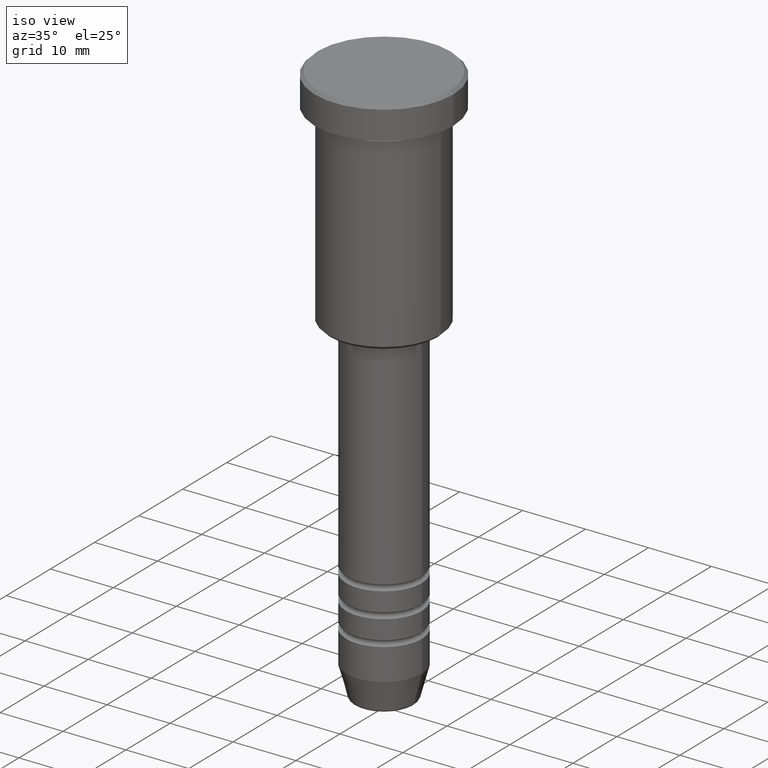
[diagram: clean part render]
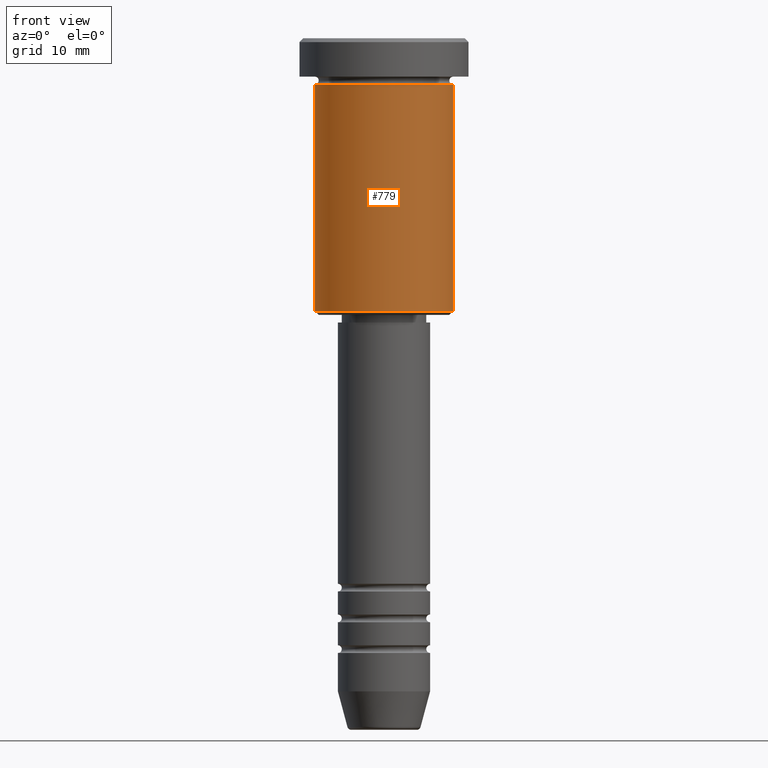
[diagram: tour spotlight — one face highlighted and labeled with its STEP entity id]
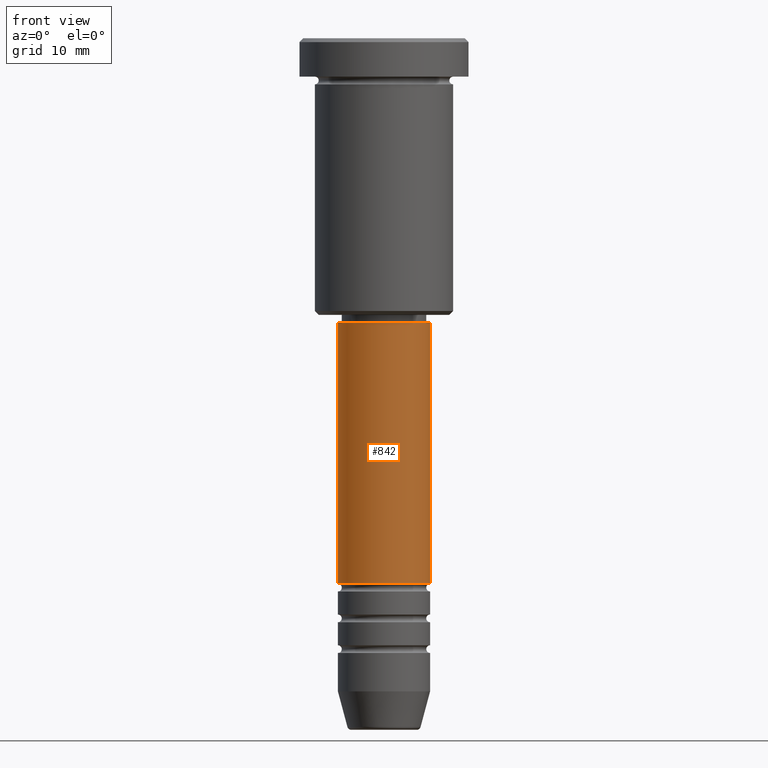
[diagram: tour spotlight — one face highlighted and labeled with its STEP entity id]
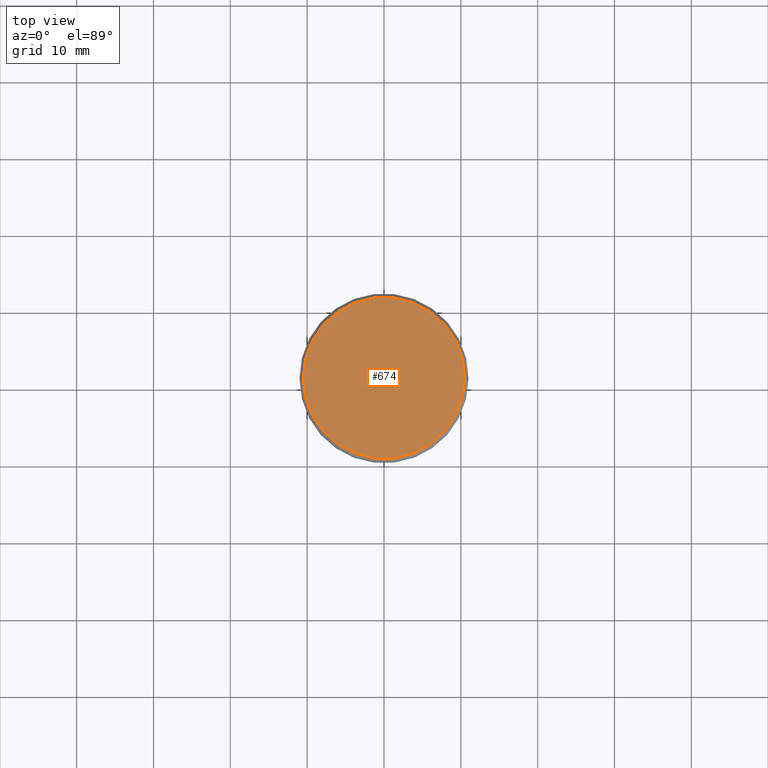
[diagram: tour spotlight — one face highlighted and labeled with its STEP entity id]
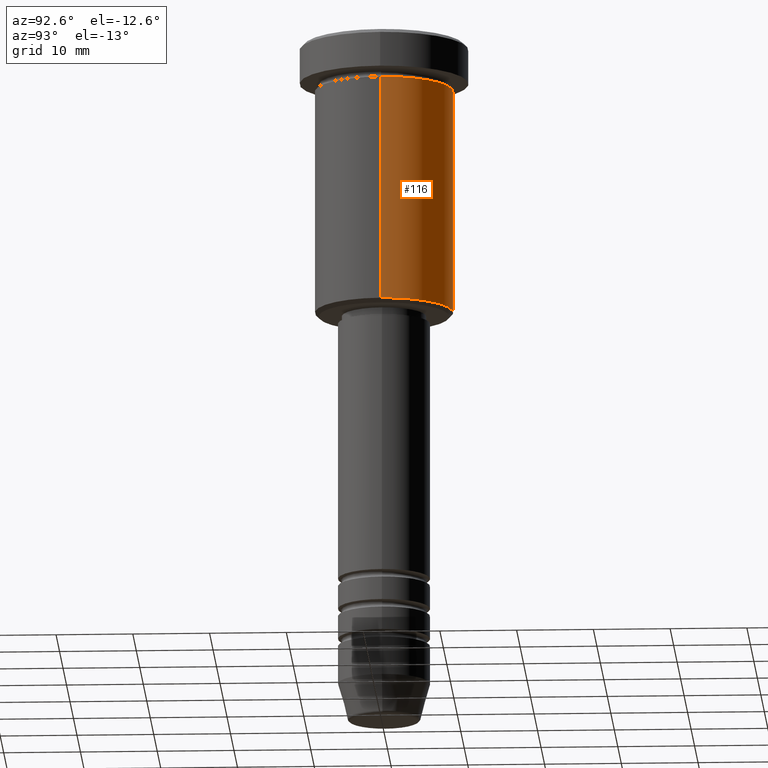
[diagram: tour spotlight — one face highlighted and labeled with its STEP entity id]
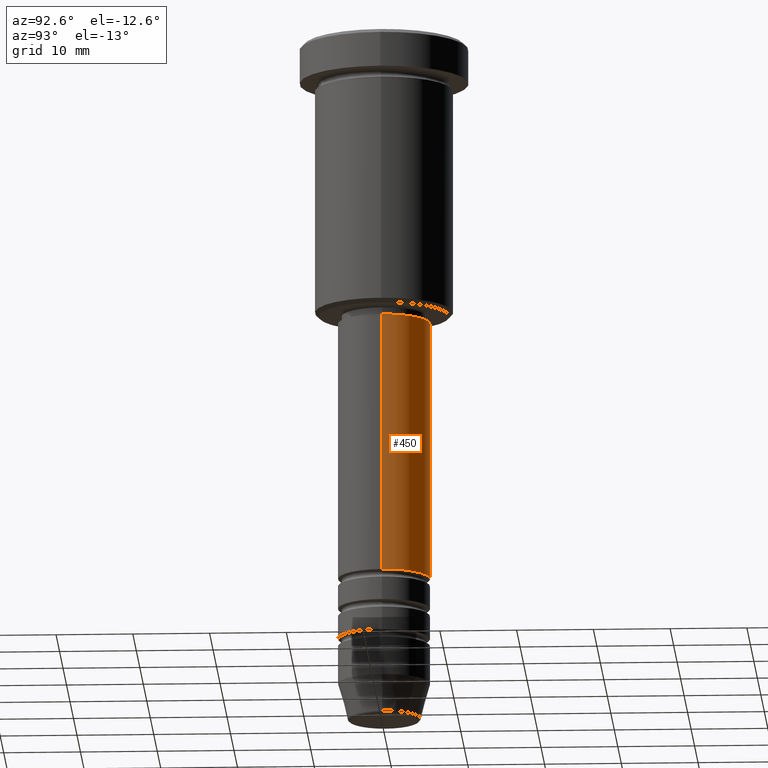
[diagram: tour spotlight — one face highlighted and labeled with its STEP entity id]
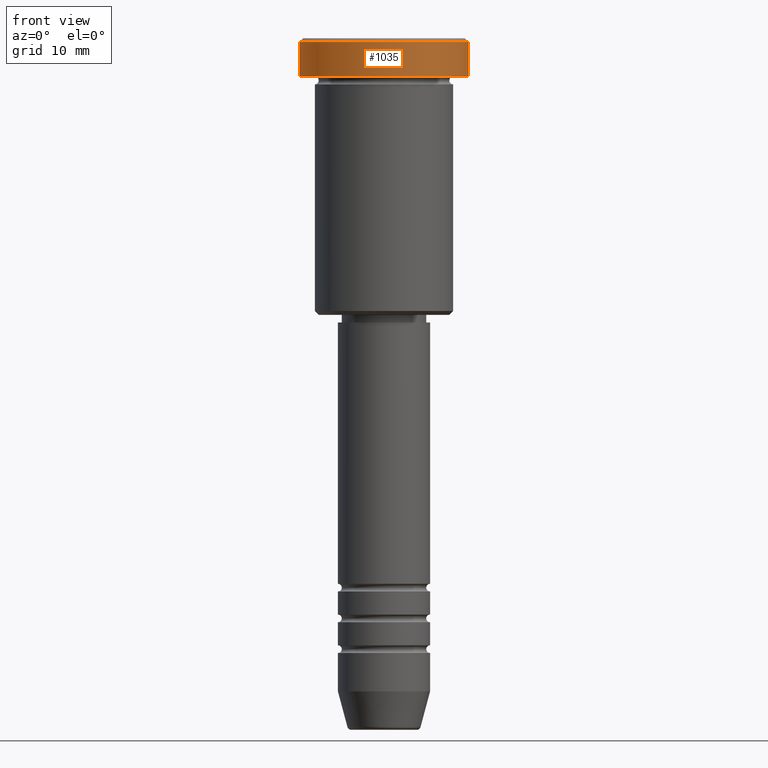
[diagram: tour spotlight — one face highlighted and labeled with its STEP entity id]
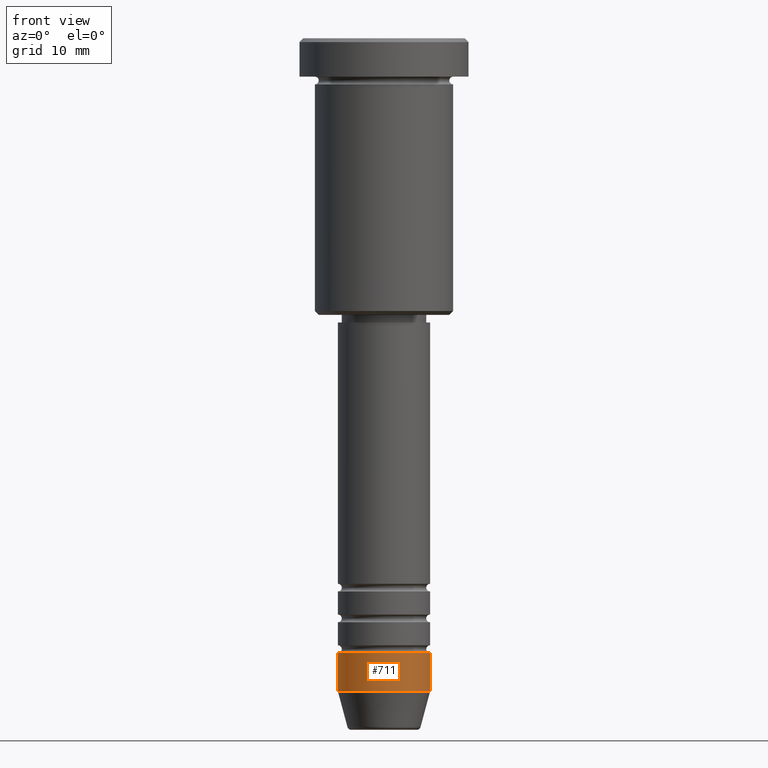
[diagram: tour spotlight — one face highlighted and labeled with its STEP entity id]
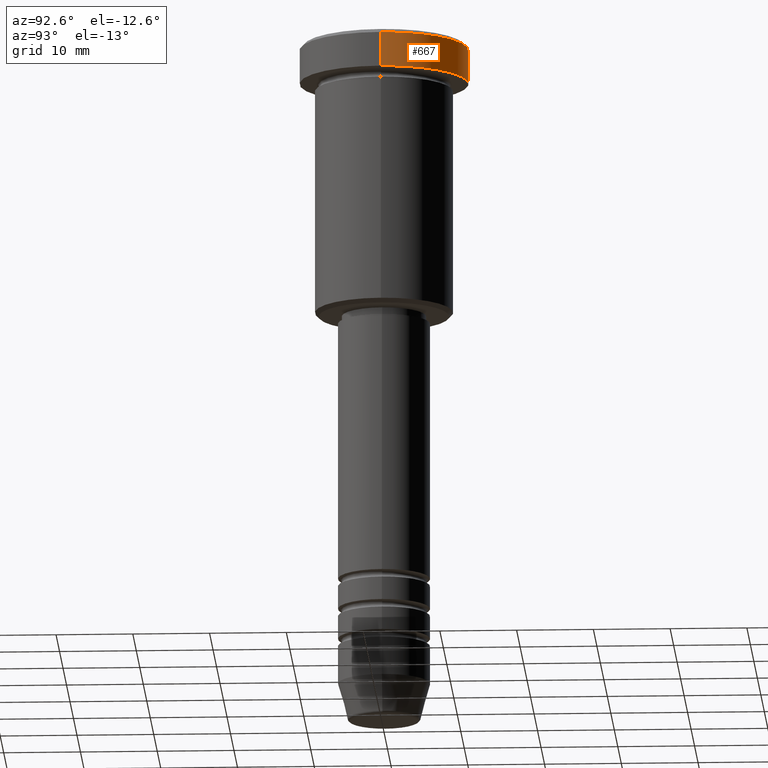
[diagram: tour spotlight — one face highlighted and labeled with its STEP entity id]
A machine part: a face-by-face anatomy tour. The part has 43 B-rep faces; the first image is the clean iso view, then the 8 largest visible faces are spotlighted one at a time (largest first), each with its STEP entity span.

Face 1 — front view, entity #779. In plain terms, the highlighted cylindrical surface (partial cylindrical patch) has radius 9 mm, axis along (-0, -0, 1).
Definition (entity closure, byte-faithful):
#21 = VERTEX_POINT ( 'NONE', #177 ) ;
#133 = CARTESIAN_POINT ( 'NONE',  ( 0.000000000000000000, 0.000000000000000000, -35.50000000000000000 ) ) ;
#134 = DIRECTION ( 'NONE',  ( 1.000000000000000000, 0.000000000000000000, 0.000000000000000000 ) ) ;
#161 = VECTOR ( 'NONE', #552, 1000.000000000000000 ) ;
#162 = AXIS2_PLACEMENT_3D ( 'NONE', #680, #1052, #134 ) ;
#177 = CARTESIAN_POINT ( 'NONE',  ( 9.000000000000000000, 0.000000000000000000, -6.000000000000000000 ) ) ;
#186 = CARTESIAN_POINT ( 'NONE',  ( -9.000000000000000000, 1.102182119232617714E-15, 0.000000000000000000 ) ) ;
#207 = ORIENTED_EDGE ( 'NONE', *, *, #330, .T. ) ;
#213 = DIRECTION ( 'NONE',  ( -0.000000000000000000, -0.000000000000000000, 1.000000000000000000 ) ) ;
#319 = CIRCLE ( 'NONE', #933, 9.000000000000000000 ) ;
#323 = DIRECTION ( 'NONE',  ( -0.000000000000000000, -0.000000000000000000, 1.000000000000000000 ) ) ;
#330 = EDGE_CURVE ( 'NONE', #487, #1087, #563, .T. ) ;
#387 = ORIENTED_EDGE ( 'NONE', *, *, #570, .T. ) ;
#389 = CYLINDRICAL_SURFACE ( 'NONE', #162, 9.000000000000000000 ) ;
#477 = FACE_OUTER_BOUND ( 'NONE', #897, .T. ) ;
#487 = VERTEX_POINT ( 'NONE', #981 ) ;
#494 = DIRECTION ( 'NONE',  ( -1.000000000000000000, 0.000000000000000000, 0.000000000000000000 ) ) ;
#552 = DIRECTION ( 'NONE',  ( -0.000000000000000000, -0.000000000000000000, 1.000000000000000000 ) ) ;
#563 = CIRCLE ( 'NONE', #1159, 9.000000000000000000 ) ;
#570 = EDGE_CURVE ( 'NONE', #1087, #21, #1097, .T. ) ;
#639 = CARTESIAN_POINT ( 'NONE',  ( 9.000000000000000000, 0.000000000000000000, 0.000000000000000000 ) ) ;
#643 = EDGE_CURVE ( 'NONE', #487, #668, #728, .T. ) ;
#668 = VERTEX_POINT ( 'NONE', #1140 ) ;
#680 = CARTESIAN_POINT ( 'NONE',  ( 0.000000000000000000, 0.000000000000000000, 0.000000000000000000 ) ) ;
#728 = LINE ( 'NONE', #186, #161 ) ;
#736 = DIRECTION ( 'NONE',  ( -0.000000000000000000, -0.000000000000000000, 1.000000000000000000 ) ) ;
#779 = ADVANCED_FACE ( 'NONE', ( #477 ), #389, .T. ) ;
#804 = EDGE_CURVE ( 'NONE', #668, #21, #319, .T. ) ;
#826 = ORIENTED_EDGE ( 'NONE', *, *, #643, .F. ) ;
#845 = DIRECTION ( 'NONE',  ( 1.000000000000000000, 0.000000000000000000, 0.000000000000000000 ) ) ;
#849 = CARTESIAN_POINT ( 'NONE',  ( 0.000000000000000000, 0.000000000000000000, -6.000000000000000000 ) ) ;
#897 = EDGE_LOOP ( 'NONE', ( #826, #207, #387, #953 ) ) ;
#933 = AXIS2_PLACEMENT_3D ( 'NONE', #849, #213, #845 ) ;
#951 = VECTOR ( 'NONE', #736, 1000.000000000000000 ) ;
#953 = ORIENTED_EDGE ( 'NONE', *, *, #804, .F. ) ;
#981 = CARTESIAN_POINT ( 'NONE',  ( -9.000000000000000000, 1.102182119232617714E-15, -35.50000000000000000 ) ) ;
#1052 = DIRECTION ( 'NONE',  ( -0.000000000000000000, -0.000000000000000000, 1.000000000000000000 ) ) ;
#1087 = VERTEX_POINT ( 'NONE', #1150 ) ;
#1097 = LINE ( 'NONE', #639, #951 ) ;
#1140 = CARTESIAN_POINT ( 'NONE',  ( -9.000000000000000000, 1.102182119232617714E-15, -6.000000000000000000 ) ) ;
#1150 = CARTESIAN_POINT ( 'NONE',  ( 9.000000000000000000, 0.000000000000000000, -35.50000000000000000 ) ) ;
#1159 = AXIS2_PLACEMENT_3D ( 'NONE', #133, #323, #494 ) ;

Face 2 — front view, entity #842. In plain terms, the highlighted cylindrical surface (partial cylindrical patch) has radius 6 mm, axis along (-0, -0, 1).
Definition (entity closure, byte-faithful):
#1 = ORIENTED_EDGE ( 'NONE', *, *, #464, .T. ) ;
#7 = DIRECTION ( 'NONE',  ( 1.000000000000000000, 0.000000000000000000, 0.000000000000000000 ) ) ;
#9 = VERTEX_POINT ( 'NONE', #1100 ) ;
#46 = LINE ( 'NONE', #776, #102 ) ;
#92 = LINE ( 'NONE', #388, #405 ) ;
#102 = VECTOR ( 'NONE', #584, 1000.000000000000000 ) ;
#139 = DIRECTION ( 'NONE',  ( 1.000000000000000000, 0.000000000000000000, 0.000000000000000000 ) ) ;
#144 = CARTESIAN_POINT ( 'NONE',  ( 6.000000000000000000, 0.000000000000000000, -37.00000000000000711 ) ) ;
#150 = CARTESIAN_POINT ( 'NONE',  ( 6.000000000000000000, 0.000000000000000000, -70.99999999999998579 ) ) ;
#235 = FACE_OUTER_BOUND ( 'NONE', #540, .T. ) ;
#254 = EDGE_CURVE ( 'NONE', #1057, #1058, #92, .T. ) ;
#299 = ORIENTED_EDGE ( 'NONE', *, *, #254, .T. ) ;
#337 = AXIS2_PLACEMENT_3D ( 'NONE', #385, #561, #7 ) ;
#380 = EDGE_CURVE ( 'NONE', #843, #9, #46, .T. ) ;
#385 = CARTESIAN_POINT ( 'NONE',  ( 0.000000000000000000, 0.000000000000000000, -37.00000000000000711 ) ) ;
#388 = CARTESIAN_POINT ( 'NONE',  ( 6.000000000000000000, 0.000000000000000000, 0.000000000000000000 ) ) ;
#405 = VECTOR ( 'NONE', #1027, 1000.000000000000000 ) ;
#464 = EDGE_CURVE ( 'NONE', #843, #1057, #715, .T. ) ;
#509 = CYLINDRICAL_SURFACE ( 'NONE', #564, 6.000000000000000000 ) ;
#533 = EDGE_CURVE ( 'NONE', #9, #1058, #812, .T. ) ;
#540 = EDGE_LOOP ( 'NONE', ( #874, #1, #299, #857 ) ) ;
#561 = DIRECTION ( 'NONE',  ( -0.000000000000000000, -0.000000000000000000, 1.000000000000000000 ) ) ;
#564 = AXIS2_PLACEMENT_3D ( 'NONE', #878, #594, #139 ) ;
#584 = DIRECTION ( 'NONE',  ( -0.000000000000000000, -0.000000000000000000, 1.000000000000000000 ) ) ;
#594 = DIRECTION ( 'NONE',  ( -0.000000000000000000, -0.000000000000000000, 1.000000000000000000 ) ) ;
#601 = CARTESIAN_POINT ( 'NONE',  ( -6.000000000000000000, 7.347880794884119736E-16, -70.99999999999998579 ) ) ;
#715 = CIRCLE ( 'NONE', #867, 6.000000000000000000 ) ;
#776 = CARTESIAN_POINT ( 'NONE',  ( -6.000000000000000000, 7.347880794884119736E-16, 0.000000000000000000 ) ) ;
#801 = DIRECTION ( 'NONE',  ( -0.000000000000000000, -0.000000000000000000, 1.000000000000000000 ) ) ;
#812 = CIRCLE ( 'NONE', #337, 6.000000000000000000 ) ;
#842 = ADVANCED_FACE ( 'NONE', ( #235 ), #509, .T. ) ;
#843 = VERTEX_POINT ( 'NONE', #601 ) ;
#857 = ORIENTED_EDGE ( 'NONE', *, *, #533, .F. ) ;
#867 = AXIS2_PLACEMENT_3D ( 'NONE', #1075, #801, #891 ) ;
#874 = ORIENTED_EDGE ( 'NONE', *, *, #380, .F. ) ;
#878 = CARTESIAN_POINT ( 'NONE',  ( 0.000000000000000000, 0.000000000000000000, 0.000000000000000000 ) ) ;
#891 = DIRECTION ( 'NONE',  ( 1.000000000000000000, 0.000000000000000000, 0.000000000000000000 ) ) ;
#1027 = DIRECTION ( 'NONE',  ( -0.000000000000000000, -0.000000000000000000, 1.000000000000000000 ) ) ;
#1057 = VERTEX_POINT ( 'NONE', #150 ) ;
#1058 = VERTEX_POINT ( 'NONE', #144 ) ;
#1075 = CARTESIAN_POINT ( 'NONE',  ( 0.000000000000000000, 0.000000000000000000, -70.99999999999998579 ) ) ;
#1100 = CARTESIAN_POINT ( 'NONE',  ( -6.000000000000000000, 7.347880794884119736E-16, -37.00000000000000711 ) ) ;

Face 3 — top view, entity #674. In plain terms, the highlighted planar face has unit normal (0, -0, 1).
Definition (entity closure, byte-faithful):
#20 = CARTESIAN_POINT ( 'NONE',  ( -10.49999999999999467, 0.000000000000000000, 0.000000000000000000 ) ) ;
#167 = EDGE_CURVE ( 'NONE', #816, #528, #950, .T. ) ;
#409 = DIRECTION ( 'NONE',  ( 1.000000000000000000, 0.000000000000000000, 0.000000000000000000 ) ) ;
#420 = DIRECTION ( 'NONE',  ( 1.000000000000000000, 0.000000000000000000, 0.000000000000000000 ) ) ;
#490 = CIRCLE ( 'NONE', #935, 10.49999999999999467 ) ;
#513 = CARTESIAN_POINT ( 'NONE',  ( 0.000000000000000000, 0.000000000000000000, 0.000000000000000000 ) ) ;
#528 = VERTEX_POINT ( 'NONE', #20 ) ;
#568 = DIRECTION ( 'NONE',  ( -0.000000000000000000, -0.000000000000000000, 1.000000000000000000 ) ) ;
#592 = ORIENTED_EDGE ( 'NONE', *, *, #167, .T. ) ;
#656 = CARTESIAN_POINT ( 'NONE',  ( 0.000000000000000000, 0.000000000000000000, 0.000000000000000000 ) ) ;
#665 = CARTESIAN_POINT ( 'NONE',  ( 10.49999999999999467, 1.316495309083404420E-15, 0.000000000000000000 ) ) ;
#674 = ADVANCED_FACE ( 'NONE', ( #856 ), #1125, .T. ) ;
#692 = ORIENTED_EDGE ( 'NONE', *, *, #1144, .T. ) ;
#742 = DIRECTION ( 'NONE',  ( 1.000000000000000000, 0.000000000000000000, 0.000000000000000000 ) ) ;
#816 = VERTEX_POINT ( 'NONE', #665 ) ;
#856 = FACE_OUTER_BOUND ( 'NONE', #960, .T. ) ;
#935 = AXIS2_PLACEMENT_3D ( 'NONE', #513, #964, #420 ) ;
#939 = CARTESIAN_POINT ( 'NONE',  ( 0.000000000000000000, 0.000000000000000000, 0.000000000000000000 ) ) ;
#950 = CIRCLE ( 'NONE', #1064, 10.49999999999999467 ) ;
#960 = EDGE_LOOP ( 'NONE', ( #692, #592 ) ) ;
#962 = DIRECTION ( 'NONE',  ( 0.000000000000000000, -0.000000000000000000, 1.000000000000000000 ) ) ;
#964 = DIRECTION ( 'NONE',  ( -0.000000000000000000, -0.000000000000000000, 1.000000000000000000 ) ) ;
#972 = AXIS2_PLACEMENT_3D ( 'NONE', #939, #962, #409 ) ;
#1064 = AXIS2_PLACEMENT_3D ( 'NONE', #656, #568, #742 ) ;
#1125 = PLANE ( 'NONE',  #972 ) ;
#1144 = EDGE_CURVE ( 'NONE', #528, #816, #490, .T. ) ;

Face 4 — auxiliary view, entity #116. In plain terms, the highlighted cylindrical surface (partial cylindrical patch) has radius 9 mm, axis along (-0, -0, 1).
Definition (entity closure, byte-faithful):
#21 = VERTEX_POINT ( 'NONE', #177 ) ;
#76 = FACE_OUTER_BOUND ( 'NONE', #201, .T. ) ;
#85 = AXIS2_PLACEMENT_3D ( 'NONE', #498, #864, #1056 ) ;
#87 = CARTESIAN_POINT ( 'NONE',  ( 0.000000000000000000, 0.000000000000000000, 0.000000000000000000 ) ) ;
#116 = ADVANCED_FACE ( 'NONE', ( #76 ), #1174, .T. ) ;
#147 = DIRECTION ( 'NONE',  ( -1.000000000000000000, 0.000000000000000000, 0.000000000000000000 ) ) ;
#161 = VECTOR ( 'NONE', #552, 1000.000000000000000 ) ;
#177 = CARTESIAN_POINT ( 'NONE',  ( 9.000000000000000000, 0.000000000000000000, -6.000000000000000000 ) ) ;
#186 = CARTESIAN_POINT ( 'NONE',  ( -9.000000000000000000, 1.102182119232617714E-15, 0.000000000000000000 ) ) ;
#201 = EDGE_LOOP ( 'NONE', ( #1094, #304, #597, #361 ) ) ;
#304 = ORIENTED_EDGE ( 'NONE', *, *, #643, .T. ) ;
#329 = DIRECTION ( 'NONE',  ( -0.000000000000000000, -0.000000000000000000, 1.000000000000000000 ) ) ;
#361 = ORIENTED_EDGE ( 'NONE', *, *, #570, .F. ) ;
#487 = VERTEX_POINT ( 'NONE', #981 ) ;
#498 = CARTESIAN_POINT ( 'NONE',  ( 0.000000000000000000, 0.000000000000000000, -6.000000000000000000 ) ) ;
#552 = DIRECTION ( 'NONE',  ( -0.000000000000000000, -0.000000000000000000, 1.000000000000000000 ) ) ;
#570 = EDGE_CURVE ( 'NONE', #1087, #21, #1097, .T. ) ;
#597 = ORIENTED_EDGE ( 'NONE', *, *, #787, .F. ) ;
#629 = DIRECTION ( 'NONE',  ( 1.000000000000000000, 0.000000000000000000, 0.000000000000000000 ) ) ;
#639 = CARTESIAN_POINT ( 'NONE',  ( 9.000000000000000000, 0.000000000000000000, 0.000000000000000000 ) ) ;
#643 = EDGE_CURVE ( 'NONE', #487, #668, #728, .T. ) ;
#668 = VERTEX_POINT ( 'NONE', #1140 ) ;
#717 = CIRCLE ( 'NONE', #85, 9.000000000000000000 ) ;
#728 = LINE ( 'NONE', #186, #161 ) ;
#736 = DIRECTION ( 'NONE',  ( -0.000000000000000000, -0.000000000000000000, 1.000000000000000000 ) ) ;
#771 = AXIS2_PLACEMENT_3D ( 'NONE', #87, #807, #629 ) ;
#787 = EDGE_CURVE ( 'NONE', #21, #668, #717, .T. ) ;
#807 = DIRECTION ( 'NONE',  ( -0.000000000000000000, -0.000000000000000000, 1.000000000000000000 ) ) ;
#864 = DIRECTION ( 'NONE',  ( -0.000000000000000000, -0.000000000000000000, 1.000000000000000000 ) ) ;
#902 = EDGE_CURVE ( 'NONE', #1087, #487, #1012, .T. ) ;
#951 = VECTOR ( 'NONE', #736, 1000.000000000000000 ) ;
#981 = CARTESIAN_POINT ( 'NONE',  ( -9.000000000000000000, 1.102182119232617714E-15, -35.50000000000000000 ) ) ;
#1012 = CIRCLE ( 'NONE', #1180, 9.000000000000000000 ) ;
#1056 = DIRECTION ( 'NONE',  ( 1.000000000000000000, 0.000000000000000000, 0.000000000000000000 ) ) ;
#1087 = VERTEX_POINT ( 'NONE', #1150 ) ;
#1094 = ORIENTED_EDGE ( 'NONE', *, *, #902, .T. ) ;
#1097 = LINE ( 'NONE', #639, #951 ) ;
#1140 = CARTESIAN_POINT ( 'NONE',  ( -9.000000000000000000, 1.102182119232617714E-15, -6.000000000000000000 ) ) ;
#1150 = CARTESIAN_POINT ( 'NONE',  ( 9.000000000000000000, 0.000000000000000000, -35.50000000000000000 ) ) ;
#1151 = CARTESIAN_POINT ( 'NONE',  ( 0.000000000000000000, 0.000000000000000000, -35.50000000000000000 ) ) ;
#1174 = CYLINDRICAL_SURFACE ( 'NONE', #771, 9.000000000000000000 ) ;
#1180 = AXIS2_PLACEMENT_3D ( 'NONE', #1151, #329, #147 ) ;

Face 5 — auxiliary view, entity #450. In plain terms, the highlighted cylindrical surface (partial cylindrical patch) has radius 6 mm, axis along (-0, -0, 1).
Definition (entity closure, byte-faithful):
#9 = VERTEX_POINT ( 'NONE', #1100 ) ;
#22 = EDGE_CURVE ( 'NONE', #1057, #843, #443, .T. ) ;
#37 = DIRECTION ( 'NONE',  ( 1.000000000000000000, 0.000000000000000000, 0.000000000000000000 ) ) ;
#46 = LINE ( 'NONE', #776, #102 ) ;
#64 = DIRECTION ( 'NONE',  ( 1.000000000000000000, 0.000000000000000000, 0.000000000000000000 ) ) ;
#92 = LINE ( 'NONE', #388, #405 ) ;
#102 = VECTOR ( 'NONE', #584, 1000.000000000000000 ) ;
#122 = CARTESIAN_POINT ( 'NONE',  ( 0.000000000000000000, 0.000000000000000000, 0.000000000000000000 ) ) ;
#144 = CARTESIAN_POINT ( 'NONE',  ( 6.000000000000000000, 0.000000000000000000, -37.00000000000000711 ) ) ;
#148 = EDGE_CURVE ( 'NONE', #1058, #9, #1009, .T. ) ;
#149 = EDGE_LOOP ( 'NONE', ( #217, #653, #478, #577 ) ) ;
#150 = CARTESIAN_POINT ( 'NONE',  ( 6.000000000000000000, 0.000000000000000000, -70.99999999999998579 ) ) ;
#217 = ORIENTED_EDGE ( 'NONE', *, *, #22, .T. ) ;
#252 = DIRECTION ( 'NONE',  ( 1.000000000000000000, 0.000000000000000000, 0.000000000000000000 ) ) ;
#254 = EDGE_CURVE ( 'NONE', #1057, #1058, #92, .T. ) ;
#259 = DIRECTION ( 'NONE',  ( -0.000000000000000000, -0.000000000000000000, 1.000000000000000000 ) ) ;
#275 = CARTESIAN_POINT ( 'NONE',  ( 0.000000000000000000, 0.000000000000000000, -37.00000000000000711 ) ) ;
#315 = AXIS2_PLACEMENT_3D ( 'NONE', #275, #1076, #252 ) ;
#328 = FACE_OUTER_BOUND ( 'NONE', #149, .T. ) ;
#349 = CARTESIAN_POINT ( 'NONE',  ( 0.000000000000000000, 0.000000000000000000, -70.99999999999998579 ) ) ;
#380 = EDGE_CURVE ( 'NONE', #843, #9, #46, .T. ) ;
#388 = CARTESIAN_POINT ( 'NONE',  ( 6.000000000000000000, 0.000000000000000000, 0.000000000000000000 ) ) ;
#405 = VECTOR ( 'NONE', #1027, 1000.000000000000000 ) ;
#443 = CIRCLE ( 'NONE', #595, 6.000000000000000000 ) ;
#450 = ADVANCED_FACE ( 'NONE', ( #328 ), #947, .T. ) ;
#478 = ORIENTED_EDGE ( 'NONE', *, *, #148, .F. ) ;
#489 = DIRECTION ( 'NONE',  ( -0.000000000000000000, -0.000000000000000000, 1.000000000000000000 ) ) ;
#577 = ORIENTED_EDGE ( 'NONE', *, *, #254, .F. ) ;
#584 = DIRECTION ( 'NONE',  ( -0.000000000000000000, -0.000000000000000000, 1.000000000000000000 ) ) ;
#595 = AXIS2_PLACEMENT_3D ( 'NONE', #349, #259, #64 ) ;
#601 = CARTESIAN_POINT ( 'NONE',  ( -6.000000000000000000, 7.347880794884119736E-16, -70.99999999999998579 ) ) ;
#653 = ORIENTED_EDGE ( 'NONE', *, *, #380, .T. ) ;
#776 = CARTESIAN_POINT ( 'NONE',  ( -6.000000000000000000, 7.347880794884119736E-16, 0.000000000000000000 ) ) ;
#831 = AXIS2_PLACEMENT_3D ( 'NONE', #122, #489, #37 ) ;
#843 = VERTEX_POINT ( 'NONE', #601 ) ;
#947 = CYLINDRICAL_SURFACE ( 'NONE', #831, 6.000000000000000000 ) ;
#1009 = CIRCLE ( 'NONE', #315, 6.000000000000000000 ) ;
#1027 = DIRECTION ( 'NONE',  ( -0.000000000000000000, -0.000000000000000000, 1.000000000000000000 ) ) ;
#1057 = VERTEX_POINT ( 'NONE', #150 ) ;
#1058 = VERTEX_POINT ( 'NONE', #144 ) ;
#1076 = DIRECTION ( 'NONE',  ( -0.000000000000000000, -0.000000000000000000, 1.000000000000000000 ) ) ;
#1100 = CARTESIAN_POINT ( 'NONE',  ( -6.000000000000000000, 7.347880794884119736E-16, -37.00000000000000711 ) ) ;

Face 6 — front view, entity #1035. In plain terms, the highlighted cylindrical surface (partial cylindrical patch) has radius 11 mm, axis along (-0, -0, 1).
Definition (entity closure, byte-faithful):
#13 = LINE ( 'NONE', #590, #199 ) ;
#55 = FACE_OUTER_BOUND ( 'NONE', #193, .T. ) ;
#107 = AXIS2_PLACEMENT_3D ( 'NONE', #331, #605, #978 ) ;
#157 = CARTESIAN_POINT ( 'NONE',  ( 11.00000000000000178, 0.000000000000000000, 0.000000000000000000 ) ) ;
#193 = EDGE_LOOP ( 'NONE', ( #281, #567, #1053, #732 ) ) ;
#199 = VECTOR ( 'NONE', #229, 1000.000000000000000 ) ;
#203 = CARTESIAN_POINT ( 'NONE',  ( 0.000000000000000000, 0.000000000000000000, -0.5000000000000022204 ) ) ;
#205 = CARTESIAN_POINT ( 'NONE',  ( 0.000000000000000000, 0.000000000000000000, -5.000000000000000000 ) ) ;
#209 = DIRECTION ( 'NONE',  ( 0.000000000000000000, 0.000000000000000000, -1.000000000000000000 ) ) ;
#229 = DIRECTION ( 'NONE',  ( -0.000000000000000000, -0.000000000000000000, 1.000000000000000000 ) ) ;
#277 = EDGE_CURVE ( 'NONE', #367, #941, #991, .T. ) ;
#281 = ORIENTED_EDGE ( 'NONE', *, *, #306, .F. ) ;
#303 = DIRECTION ( 'NONE',  ( 1.000000000000000000, 0.000000000000000000, 0.000000000000000000 ) ) ;
#306 = EDGE_CURVE ( 'NONE', #451, #941, #13, .T. ) ;
#325 = VERTEX_POINT ( 'NONE', #1051 ) ;
#331 = CARTESIAN_POINT ( 'NONE',  ( 0.000000000000000000, 0.000000000000000000, 0.000000000000000000 ) ) ;
#367 = VERTEX_POINT ( 'NONE', #497 ) ;
#374 = VECTOR ( 'NONE', #520, 1000.000000000000000 ) ;
#451 = VERTEX_POINT ( 'NONE', #765 ) ;
#452 = EDGE_CURVE ( 'NONE', #325, #367, #1135, .T. ) ;
#497 = CARTESIAN_POINT ( 'NONE',  ( 11.00000000000000178, 0.000000000000000000, -0.5000000000000022204 ) ) ;
#520 = DIRECTION ( 'NONE',  ( -0.000000000000000000, -0.000000000000000000, 1.000000000000000000 ) ) ;
#567 = ORIENTED_EDGE ( 'NONE', *, *, #666, .T. ) ;
#590 = CARTESIAN_POINT ( 'NONE',  ( -11.00000000000000178, 1.347111479062088602E-15, 0.000000000000000000 ) ) ;
#605 = DIRECTION ( 'NONE',  ( -0.000000000000000000, -0.000000000000000000, 1.000000000000000000 ) ) ;
#624 = AXIS2_PLACEMENT_3D ( 'NONE', #205, #906, #303 ) ;
#666 = EDGE_CURVE ( 'NONE', #451, #325, #1142, .T. ) ;
#732 = ORIENTED_EDGE ( 'NONE', *, *, #277, .T. ) ;
#765 = CARTESIAN_POINT ( 'NONE',  ( -11.00000000000000000, 1.347111479062088602E-15, -5.000000000000000000 ) ) ;
#784 = CYLINDRICAL_SURFACE ( 'NONE', #107, 11.00000000000000178 ) ;
#824 = DIRECTION ( 'NONE',  ( 1.000000000000000000, 0.000000000000000000, 0.000000000000000000 ) ) ;
#850 = AXIS2_PLACEMENT_3D ( 'NONE', #203, #209, #824 ) ;
#906 = DIRECTION ( 'NONE',  ( -0.000000000000000000, -0.000000000000000000, 1.000000000000000000 ) ) ;
#941 = VERTEX_POINT ( 'NONE', #1093 ) ;
#978 = DIRECTION ( 'NONE',  ( 1.000000000000000000, 0.000000000000000000, 0.000000000000000000 ) ) ;
#991 = CIRCLE ( 'NONE', #850, 11.00000000000000178 ) ;
#1035 = ADVANCED_FACE ( 'NONE', ( #55 ), #784, .T. ) ;
#1051 = CARTESIAN_POINT ( 'NONE',  ( 11.00000000000000000, 0.000000000000000000, -5.000000000000000000 ) ) ;
#1053 = ORIENTED_EDGE ( 'NONE', *, *, #452, .T. ) ;
#1093 = CARTESIAN_POINT ( 'NONE',  ( -11.00000000000000178, 1.347111479062088602E-15, -0.5000000000000022204 ) ) ;
#1135 = LINE ( 'NONE', #157, #374 ) ;
#1142 = CIRCLE ( 'NONE', #624, 11.00000000000000000 ) ;

Face 7 — front view, entity #711. In plain terms, the highlighted cylindrical surface (partial cylindrical patch) has radius 6 mm, axis along (-0, -0, 1).
Definition (entity closure, byte-faithful):
#32 = CARTESIAN_POINT ( 'NONE',  ( 6.000000000000000000, 0.000000000000000000, 0.000000000000000000 ) ) ;
#38 = FACE_OUTER_BOUND ( 'NONE', #1153, .T. ) ;
#124 = CIRCLE ( 'NONE', #298, 5.999999999999999112 ) ;
#129 = EDGE_CURVE ( 'NONE', #512, #720, #640, .T. ) ;
#131 = CARTESIAN_POINT ( 'NONE',  ( 6.000000000000000000, 0.000000000000000000, -84.99999999999998579 ) ) ;
#160 = AXIS2_PLACEMENT_3D ( 'NONE', #615, #1164, #1004 ) ;
#210 = DIRECTION ( 'NONE',  ( -0.000000000000000000, -0.000000000000000000, 1.000000000000000000 ) ) ;
#227 = DIRECTION ( 'NONE',  ( -0.000000000000000000, -0.000000000000000000, 1.000000000000000000 ) ) ;
#241 = EDGE_CURVE ( 'NONE', #512, #1000, #1033, .T. ) ;
#264 = ORIENTED_EDGE ( 'NONE', *, *, #241, .F. ) ;
#276 = CARTESIAN_POINT ( 'NONE',  ( -6.000000000000000000, 7.347880794884119736E-16, -84.99999999999998579 ) ) ;
#283 = AXIS2_PLACEMENT_3D ( 'NONE', #1136, #227, #959 ) ;
#294 = CARTESIAN_POINT ( 'NONE',  ( -6.000000000000000000, 7.347880794884119736E-16, 0.000000000000000000 ) ) ;
#298 = AXIS2_PLACEMENT_3D ( 'NONE', #708, #1081, #608 ) ;
#300 = VECTOR ( 'NONE', #210, 1000.000000000000000 ) ;
#493 = EDGE_CURVE ( 'NONE', #1000, #926, #124, .T. ) ;
#512 = VERTEX_POINT ( 'NONE', #276 ) ;
#545 = VECTOR ( 'NONE', #844, 1000.000000000000000 ) ;
#586 = CYLINDRICAL_SURFACE ( 'NONE', #283, 6.000000000000000000 ) ;
#608 = DIRECTION ( 'NONE',  ( 1.000000000000000000, 0.000000000000000000, 0.000000000000000000 ) ) ;
#612 = ORIENTED_EDGE ( 'NONE', *, *, #129, .T. ) ;
#615 = CARTESIAN_POINT ( 'NONE',  ( 0.000000000000000000, 0.000000000000000000, -84.99999999999998579 ) ) ;
#640 = CIRCLE ( 'NONE', #160, 6.000000000000000000 ) ;
#708 = CARTESIAN_POINT ( 'NONE',  ( 0.000000000000000000, 0.000000000000000000, -79.99999999999998579 ) ) ;
#711 = ADVANCED_FACE ( 'NONE', ( #38 ), #586, .T. ) ;
#718 = CARTESIAN_POINT ( 'NONE',  ( 5.999999999999999112, 0.000000000000000000, -79.99999999999998579 ) ) ;
#720 = VERTEX_POINT ( 'NONE', #131 ) ;
#821 = ORIENTED_EDGE ( 'NONE', *, *, #493, .F. ) ;
#823 = EDGE_CURVE ( 'NONE', #720, #926, #1034, .T. ) ;
#837 = ORIENTED_EDGE ( 'NONE', *, *, #823, .T. ) ;
#844 = DIRECTION ( 'NONE',  ( -0.000000000000000000, -0.000000000000000000, 1.000000000000000000 ) ) ;
#926 = VERTEX_POINT ( 'NONE', #718 ) ;
#959 = DIRECTION ( 'NONE',  ( 1.000000000000000000, 0.000000000000000000, 0.000000000000000000 ) ) ;
#1000 = VERTEX_POINT ( 'NONE', #1002 ) ;
#1002 = CARTESIAN_POINT ( 'NONE',  ( -5.999999999999999112, 7.347880794884118750E-16, -79.99999999999998579 ) ) ;
#1004 = DIRECTION ( 'NONE',  ( 1.000000000000000000, 0.000000000000000000, 0.000000000000000000 ) ) ;
#1033 = LINE ( 'NONE', #294, #545 ) ;
#1034 = LINE ( 'NONE', #32, #300 ) ;
#1081 = DIRECTION ( 'NONE',  ( -0.000000000000000000, -0.000000000000000000, 1.000000000000000000 ) ) ;
#1136 = CARTESIAN_POINT ( 'NONE',  ( 0.000000000000000000, 0.000000000000000000, 0.000000000000000000 ) ) ;
#1153 = EDGE_LOOP ( 'NONE', ( #264, #612, #837, #821 ) ) ;
#1164 = DIRECTION ( 'NONE',  ( -0.000000000000000000, -0.000000000000000000, 1.000000000000000000 ) ) ;

Face 8 — auxiliary view, entity #667. In plain terms, the highlighted cylindrical surface (partial cylindrical patch) has radius 11 mm, axis along (-0, -0, 1).
Definition (entity closure, byte-faithful):
#13 = LINE ( 'NONE', #590, #199 ) ;
#47 = DIRECTION ( 'NONE',  ( 1.000000000000000000, 0.000000000000000000, 0.000000000000000000 ) ) ;
#50 = AXIS2_PLACEMENT_3D ( 'NONE', #569, #860, #47 ) ;
#57 = CARTESIAN_POINT ( 'NONE',  ( 0.000000000000000000, 0.000000000000000000, -0.5000000000000022204 ) ) ;
#69 = CIRCLE ( 'NONE', #284, 11.00000000000000178 ) ;
#127 = ORIENTED_EDGE ( 'NONE', *, *, #722, .T. ) ;
#157 = CARTESIAN_POINT ( 'NONE',  ( 11.00000000000000178, 0.000000000000000000, 0.000000000000000000 ) ) ;
#199 = VECTOR ( 'NONE', #229, 1000.000000000000000 ) ;
#229 = DIRECTION ( 'NONE',  ( -0.000000000000000000, -0.000000000000000000, 1.000000000000000000 ) ) ;
#284 = AXIS2_PLACEMENT_3D ( 'NONE', #57, #507, #613 ) ;
#305 = CARTESIAN_POINT ( 'NONE',  ( 0.000000000000000000, 0.000000000000000000, 0.000000000000000000 ) ) ;
#306 = EDGE_CURVE ( 'NONE', #451, #941, #13, .T. ) ;
#325 = VERTEX_POINT ( 'NONE', #1051 ) ;
#367 = VERTEX_POINT ( 'NONE', #497 ) ;
#374 = VECTOR ( 'NONE', #520, 1000.000000000000000 ) ;
#451 = VERTEX_POINT ( 'NONE', #765 ) ;
#452 = EDGE_CURVE ( 'NONE', #325, #367, #1135, .T. ) ;
#475 = ORIENTED_EDGE ( 'NONE', *, *, #306, .T. ) ;
#482 = DIRECTION ( 'NONE',  ( 1.000000000000000000, 0.000000000000000000, 0.000000000000000000 ) ) ;
#495 = FACE_OUTER_BOUND ( 'NONE', #1073, .T. ) ;
#497 = CARTESIAN_POINT ( 'NONE',  ( 11.00000000000000178, 0.000000000000000000, -0.5000000000000022204 ) ) ;
#507 = DIRECTION ( 'NONE',  ( 0.000000000000000000, 0.000000000000000000, -1.000000000000000000 ) ) ;
#520 = DIRECTION ( 'NONE',  ( -0.000000000000000000, -0.000000000000000000, 1.000000000000000000 ) ) ;
#546 = CIRCLE ( 'NONE', #50, 11.00000000000000000 ) ;
#569 = CARTESIAN_POINT ( 'NONE',  ( 0.000000000000000000, 0.000000000000000000, -5.000000000000000000 ) ) ;
#590 = CARTESIAN_POINT ( 'NONE',  ( -11.00000000000000178, 1.347111479062088602E-15, 0.000000000000000000 ) ) ;
#613 = DIRECTION ( 'NONE',  ( 1.000000000000000000, 0.000000000000000000, 0.000000000000000000 ) ) ;
#658 = ORIENTED_EDGE ( 'NONE', *, *, #452, .F. ) ;
#667 = ADVANCED_FACE ( 'NONE', ( #495 ), #669, .T. ) ;
#669 = CYLINDRICAL_SURFACE ( 'NONE', #758, 11.00000000000000178 ) ;
#684 = DIRECTION ( 'NONE',  ( -0.000000000000000000, -0.000000000000000000, 1.000000000000000000 ) ) ;
#722 = EDGE_CURVE ( 'NONE', #325, #451, #546, .T. ) ;
#758 = AXIS2_PLACEMENT_3D ( 'NONE', #305, #684, #482 ) ;
#765 = CARTESIAN_POINT ( 'NONE',  ( -11.00000000000000000, 1.347111479062088602E-15, -5.000000000000000000 ) ) ;
#860 = DIRECTION ( 'NONE',  ( -0.000000000000000000, -0.000000000000000000, 1.000000000000000000 ) ) ;
#941 = VERTEX_POINT ( 'NONE', #1093 ) ;
#1024 = ORIENTED_EDGE ( 'NONE', *, *, #1079, .T. ) ;
#1051 = CARTESIAN_POINT ( 'NONE',  ( 11.00000000000000000, 0.000000000000000000, -5.000000000000000000 ) ) ;
#1073 = EDGE_LOOP ( 'NONE', ( #127, #475, #1024, #658 ) ) ;
#1079 = EDGE_CURVE ( 'NONE', #941, #367, #69, .T. ) ;
#1093 = CARTESIAN_POINT ( 'NONE',  ( -11.00000000000000178, 1.347111479062088602E-15, -0.5000000000000022204 ) ) ;
#1135 = LINE ( 'NONE', #157, #374 ) ;